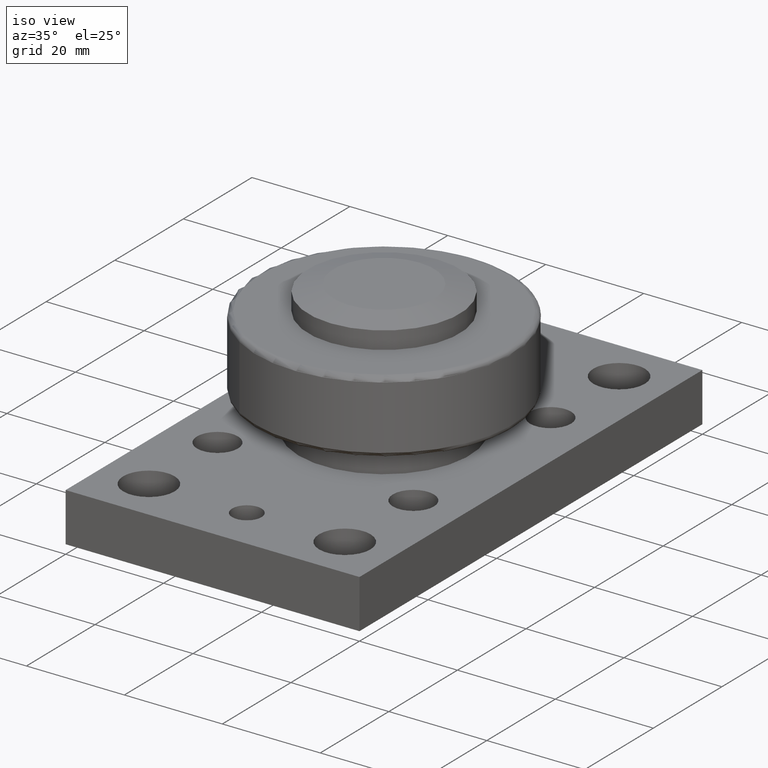
[diagram: clean part render]
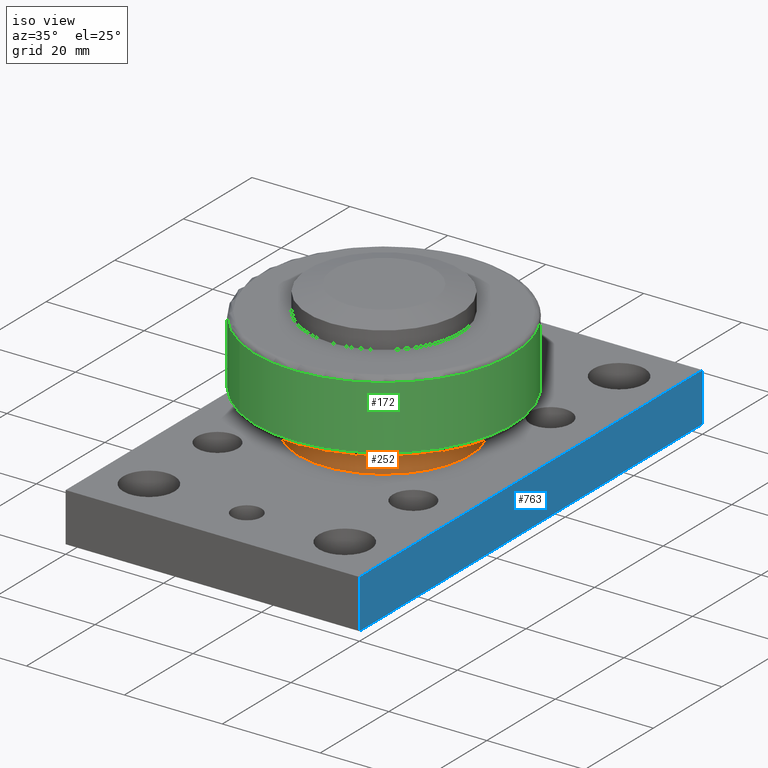
[diagram: same view with three faces highlighted in distinct colors, each labeled with its STEP entity id]
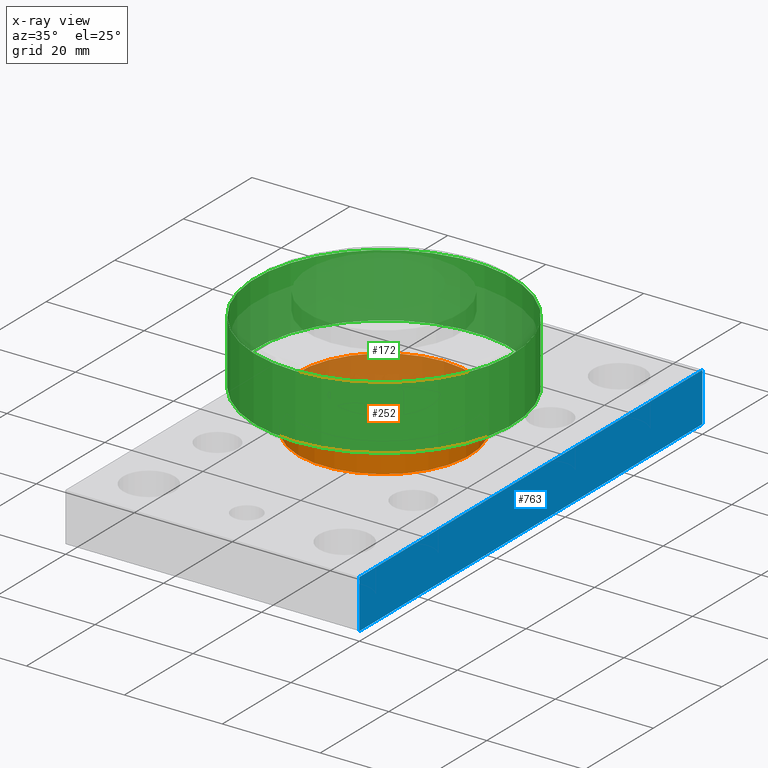
[diagram: x-ray of the same camera — body ghosted, the three highlighted faces saturated]
A machine part, iso view with three faces highlighted in distinct colors.
The next image is the same camera in x-ray (body ghosted, the three faces saturated) — at least one of them is partly hidden behind the body in this view.
Their STEP definitions:

[orange] entity #252 — the highlighted cylindrical surface (bore or boss wall) has radius 17.5 mm, axis along (0, 0, 1).
#225=CARTESIAN_POINT('',(29.999999999999993,50.0,12.999999999999996));
#226=DIRECTION('',(0.0,0.0,1.0));
#227=DIRECTION('',(0.0,1.0,0.0));
#228=AXIS2_PLACEMENT_3D('',#225,#226,#227);
#229=CYLINDRICAL_SURFACE('',#228,17.5);
#230=CARTESIAN_POINT('',(29.999999999999993,67.5,15.999999999999996));
#231=VERTEX_POINT('',#230);
#232=CARTESIAN_POINT('',(29.999999999999993,50.0,15.999999999999996));
#233=DIRECTION('',(0.0,0.0,1.0));
#234=DIRECTION('',(0.0,1.0,0.0));
#235=AXIS2_PLACEMENT_3D('',#232,#233,#234);
#236=CIRCLE('',#235,17.5);
#237=EDGE_CURVE('',#231,#231,#236,.T.);
#238=ORIENTED_EDGE('',*,*,#237,.F.);
#239=EDGE_LOOP('',(#238));
#240=FACE_OUTER_BOUND('',#239,.T.);
#241=CARTESIAN_POINT('',(29.999999999999993,67.5,9.999999999999996));
#242=VERTEX_POINT('',#241);
#243=CARTESIAN_POINT('',(29.999999999999993,50.0,10.0));
#244=DIRECTION('',(0.0,0.0,-1.0));
#245=DIRECTION('',(0.0,1.0,0.0));
#246=AXIS2_PLACEMENT_3D('',#243,#244,#245);
#247=CIRCLE('',#246,17.5);
#248=EDGE_CURVE('',#242,#242,#247,.T.);
#249=ORIENTED_EDGE('',*,*,#248,.F.);
#250=EDGE_LOOP('',(#249));
#251=FACE_BOUND('',#250,.T.);
#252=ADVANCED_FACE('',(#240,#251),#229,.T.);

[blue] entity #763 — the highlighted planar face has unit normal (1, 0, 0).
#300=CARTESIAN_POINT('',(60.0,1.034896E-030,10.0));
#301=VERTEX_POINT('',#300);
#308=CARTESIAN_POINT('',(59.999999999999986,100.0,10.0));
#309=VERTEX_POINT('',#308);
#310=CARTESIAN_POINT('',(59.999999999999986,100.0,10.0));
#311=DIRECTION('',(0.0,-1.0,0.0));
#312=VECTOR('',#311,100.0);
#313=LINE('',#310,#312);
#314=EDGE_CURVE('',#309,#301,#313,.T.);
#445=CARTESIAN_POINT('',(60.0,1.034896E-030,0.0));
#446=VERTEX_POINT('',#445);
#461=CARTESIAN_POINT('',(59.999999999999986,100.0,0.0));
#462=VERTEX_POINT('',#461);
#469=CARTESIAN_POINT('',(60.0,1.034896E-030,0.0));
#470=DIRECTION('',(0.0,1.0,0.0));
#471=VECTOR('',#470,100.0);
#472=LINE('',#469,#471);
#473=EDGE_CURVE('',#446,#462,#472,.T.);
#736=CARTESIAN_POINT('',(59.999999999999986,100.0,0.0));
#737=DIRECTION('',(0.0,0.0,1.0));
#738=VECTOR('',#737,10.0);
#739=LINE('',#736,#738);
#740=EDGE_CURVE('',#462,#309,#739,.T.);
#747=CARTESIAN_POINT('',(59.999999999999986,100.0,0.0));
#748=DIRECTION('',(1.0,0.0,0.0));
#749=DIRECTION('',(0.0,0.0,-1.0));
#750=AXIS2_PLACEMENT_3D('',#747,#748,#749);
#751=PLANE('',#750);
#752=ORIENTED_EDGE('',*,*,#314,.T.);
#753=CARTESIAN_POINT('',(60.0,1.034896E-030,0.0));
#754=DIRECTION('',(0.0,0.0,1.0));
#755=VECTOR('',#754,10.0);
#756=LINE('',#753,#755);
#757=EDGE_CURVE('',#446,#301,#756,.T.);
#758=ORIENTED_EDGE('',*,*,#757,.F.);
#759=ORIENTED_EDGE('',*,*,#473,.T.);
#760=ORIENTED_EDGE('',*,*,#740,.T.);
#761=EDGE_LOOP('',(#752,#758,#759,#760));
#762=FACE_OUTER_BOUND('',#761,.T.);
#763=ADVANCED_FACE('',(#762),#751,.T.);

[green] entity #172 — the highlighted cylindrical surface (bore or boss wall) has radius 26.25 mm, axis along (0, 0, -1).
#130=CARTESIAN_POINT('',(16.027586957531035,27.777619979609675,18.000000000000036));
#131=VERTEX_POINT('',#130);
#132=CARTESIAN_POINT('',(30.0,50.000000000000014,18.000000000000053));
#133=DIRECTION('',(0.0,0.0,-1.0));
#134=DIRECTION('',(0.532282401617865,0.846566857919632,0.0));
#135=AXIS2_PLACEMENT_3D('',#132,#133,#134);
#136=CIRCLE('',#135,26.250000000000004);
#137=EDGE_CURVE('',#131,#131,#136,.T.);
#153=CARTESIAN_POINT('',(30.0,50.0,24.500000000000057));
#154=DIRECTION('',(0.0,0.0,-1.0));
#155=DIRECTION('',(-0.532282401617865,-0.846566857919632,0.0));
#156=AXIS2_PLACEMENT_3D('',#153,#154,#155);
#157=CYLINDRICAL_SURFACE('',#156,26.250000000000004);
#158=CARTESIAN_POINT('',(16.027586957531046,27.777619979609653,31.000000000000032));
#159=VERTEX_POINT('',#158);
#160=CARTESIAN_POINT('',(30.0,49.999999999999993,31.00000000000005));
#161=DIRECTION('',(0.0,0.0,1.0));
#162=DIRECTION('',(0.532282401617865,0.846566857919632,0.0));
#163=AXIS2_PLACEMENT_3D('',#160,#161,#162);
#164=CIRCLE('',#163,26.250000000000004);
#165=EDGE_CURVE('',#159,#159,#164,.T.);
#166=ORIENTED_EDGE('',*,*,#165,.F.);
#167=EDGE_LOOP('',(#166));
#168=FACE_OUTER_BOUND('',#167,.T.);
#169=ORIENTED_EDGE('',*,*,#137,.F.);
#170=EDGE_LOOP('',(#169));
#171=FACE_BOUND('',#170,.T.);
#172=ADVANCED_FACE('',(#168,#171),#157,.T.);